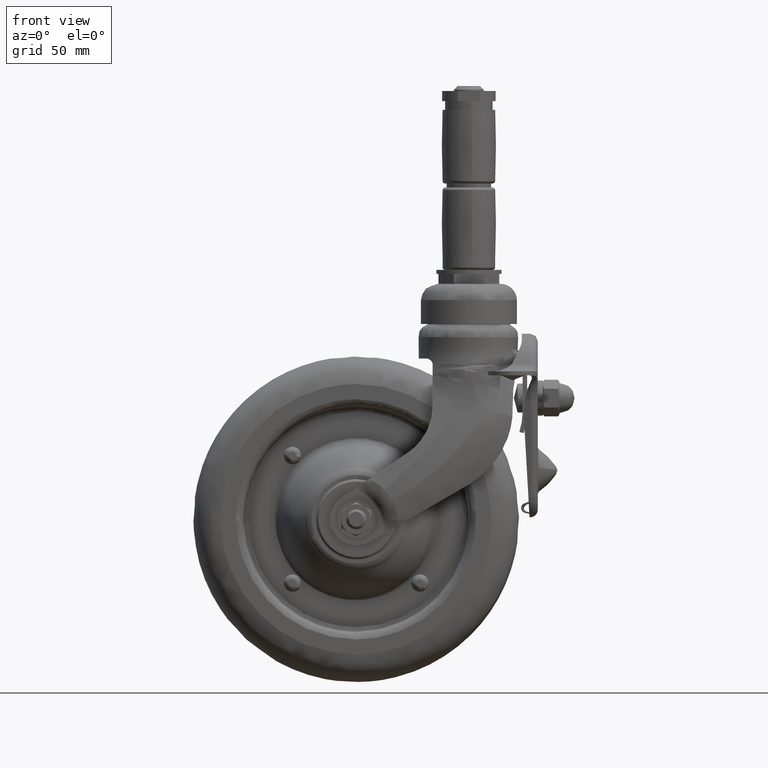
[diagram: clean part render]
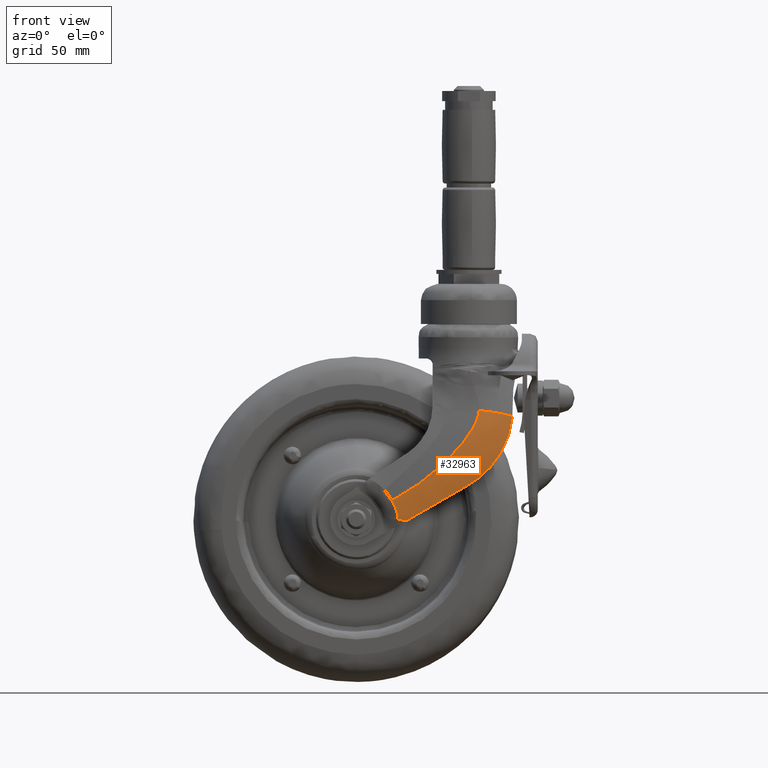
[diagram: same view with one face highlighted and labeled with its STEP entity id]
A machine part, front view. The second image highlights one B-rep face of the part: STEP entity #32963.
In plain terms, the highlighted face is a freeform B-spline surface patch.
Its self-contained STEP definition (entity closure, byte-faithful):
#30776=CARTESIAN_POINT('',(20.415976594756302,-23.865052486163901,-0.337185914948546));
#30777=VERTEX_POINT('',#30776);
#30828=CARTESIAN_POINT('',(45.0,-21.160551298550551,13.856406867544759));
#30829=VERTEX_POINT('',#30828);
#30835=CARTESIAN_POINT('',(20.415976594756302,-23.865052486163901,-0.337185914948546));
#30836=CARTESIAN_POINT('',(21.449715460071388,-23.866348664602832,0.259643507797667));
#30837=CARTESIAN_POINT('',(22.482211063196750,-23.852576439193459,0.855755132770276));
#30838=CARTESIAN_POINT('',(24.545028476371961,-23.798685500758559,2.046723342676876));
#30839=CARTESIAN_POINT('',(25.575345488718430,-23.758508639304551,2.641577157655014));
#30840=CARTESIAN_POINT('',(27.633883661476322,-23.652753079528740,3.830074746910936));
#30841=CARTESIAN_POINT('',(28.662103387305919,-23.587156993999109,4.423717692932510));
#30842=CARTESIAN_POINT('',(30.716391954542519,-23.429895989397650,5.609761771253259));
#30843=CARTESIAN_POINT('',(31.742460494124462,-23.338227412189880,6.202162729293643));
#30844=CARTESIAN_POINT('',(33.792278459912197,-23.126782480372430,7.385625704618679));
#30845=CARTESIAN_POINT('',(34.816028264834230,-23.007010715823281,7.976687940555241));
#30846=CARTESIAN_POINT('',(36.860965695597777,-22.736413440065011,9.157333137620302));
#30847=CARTESIAN_POINT('',(37.882153621946870,-22.585591571023318,9.746916272246921));
#30848=CARTESIAN_POINT('',(39.921572445646902,-22.248108484287719,10.924375299981801));
#30849=CARTESIAN_POINT('',(40.939804667803500,-22.061463323308640,11.512251957966980));
#30850=CARTESIAN_POINT('',(42.972743689713397,-21.645444694412451,12.685969870327691));
#30851=CARTESIAN_POINT('',(43.987453115458912,-21.416103053660269,13.271812640820540));
#30852=CARTESIAN_POINT('',(45.0,-21.160551298550551,13.856406867544759));
#30853=B_SPLINE_CURVE_WITH_KNOTS('',3,(#30835,#30836,#30837,#30838,#30839,#30840,#30841,#30842,#30843,#30844,#30845,#30846,#30847,#30848,#30849,#30850,#30851,#30852),.UNSPECIFIED.,.F.,.U.,(4,2,2,2,2,2,2,2,4),(0.0,0.125000000000000,0.250000000000000,0.375000000000000,0.500000000000000,0.625000000000000,0.750000000000000,0.875000000000000,1.0),.UNSPECIFIED.);
#30854=EDGE_CURVE('',#30777,#30829,#30853,.T.);
#30957=CARTESIAN_POINT('',(62.366952196205098,-16.766161363018700,41.118420051766300));
#30958=VERTEX_POINT('',#30957);
#30959=CARTESIAN_POINT('',(62.366952196205098,-16.766161363018700,41.118420051766300));
#30960=CARTESIAN_POINT('',(62.244645255823087,-17.021816798708020,39.719717770106023));
#30961=CARTESIAN_POINT('',(62.038887086209911,-17.225509760171860,38.334175742820769));
#30962=CARTESIAN_POINT('',(61.462632743878160,-17.570646936777720,35.594105800714331));
#30963=CARTESIAN_POINT('',(61.092153567125180,-17.712142712493002,34.239580322402787));
#30964=CARTESIAN_POINT('',(60.524323237998701,-17.872985926071969,32.569080850117658));
#30965=CARTESIAN_POINT('',(60.405507374761669,-17.904340622516600,32.236115363345561));
#30966=CARTESIAN_POINT('',(60.157275904479782,-17.965947855213201,31.572542430610220));
#30967=CARTESIAN_POINT('',(60.027660522471876,-17.996242128587141,31.241471414229569));
#30968=CARTESIAN_POINT('',(59.624979782341534,-18.085756753492479,30.257291142585888));
#30969=CARTESIAN_POINT('',(59.337760998762583,-18.143729260679908,29.612139452461300));
#30970=CARTESIAN_POINT('',(58.421197052905782,-18.318403385870020,27.709410261967822));
#30971=CARTESIAN_POINT('',(57.737117229612473,-18.436051079628740,26.484476661684472));
#30972=CARTESIAN_POINT('',(56.225960573782963,-18.699639368886888,24.122731968265590));
#30973=CARTESIAN_POINT('',(55.398900742132518,-18.845563771771680,22.985908987897201));
#30974=CARTESIAN_POINT('',(54.386519514185103,-19.036821740594291,21.758674543617161));
#30975=CARTESIAN_POINT('',(54.272809389235931,-19.058460918669549,21.622942202218550));
#30976=CARTESIAN_POINT('',(54.043861668669607,-19.102368167577140,21.353821506481172));
#30977=CARTESIAN_POINT('',(53.697934956014002,-19.169211495386399,20.953389013031991));
#30978=CARTESIAN_POINT('',(53.344577686781683,-19.239089345251319,20.562624638833402));
#30979=CARTESIAN_POINT('',(52.628148095656300,-19.383071786326841,19.793806369053311));
#30980=CARTESIAN_POINT('',(52.137586125143812,-19.484712237918689,19.298199320140260));
#30981=CARTESIAN_POINT('',(50.628194978329802,-19.807408145288779,17.861078559464548));
#30982=CARTESIAN_POINT('',(49.571831095539551,-20.046460344324831,16.969122070734400));
#30983=CARTESIAN_POINT('',(47.360681807768252,-20.570874971327690,15.314918088860820));
#30984=CARTESIAN_POINT('',(46.205912356221283,-20.856196972272251,14.552640691028220));
#30985=CARTESIAN_POINT('',(45.0,-21.160551298550551,13.856406867544759));
#30986=B_SPLINE_CURVE_WITH_KNOTS('',3,(#30959,#30960,#30961,#30962,#30963,#30964,#30965,#30966,#30967,#30968,#30969,#30970,#30971,#30972,#30973,#30974,#30975,#30976,#30977,#30978,#30979,#30980,#30981,#30982,#30983,#30984,#30985),.UNSPECIFIED.,.F.,.U.,(4,2,2,2,2,2,2,2,2,1,2,2,2,4),(0.0,0.124999999999999,0.249999999999998,0.281249999999998,0.312499999999998,0.374999999999999,0.499999999999999,0.625000000000000,0.640625000000000,0.656250000000000,0.687500000000000,0.750000000000000,0.875000000000000,1.0),.UNSPECIFIED.);
#30987=EDGE_CURVE('',#30958,#30829,#30986,.T.);
#32399=CARTESIAN_POINT('',(14.340232834005899,-25.932466987408350,7.506909757720419));
#32400=VERTEX_POINT('',#32399);
#32516=CARTESIAN_POINT('',(16.824663103213851,-24.679304129174049,-0.174273375091436));
#32517=VERTEX_POINT('',#32516);
#32531=CARTESIAN_POINT('',(14.340232834005921,-25.932466987408350,7.506909757720440));
#32532=CARTESIAN_POINT('',(14.674780783568499,-25.963658045048479,6.899382182002607));
#32533=CARTESIAN_POINT('',(14.980524010004270,-25.959381745148260,6.281909699237446));
#32534=CARTESIAN_POINT('',(15.534024405093639,-25.881890017400728,5.026773156759369));
#32535=CARTESIAN_POINT('',(15.781819271270381,-25.808674866862511,4.389125334215402));
#32536=CARTESIAN_POINT('',(16.051224405667860,-25.673942398282659,3.577687815009695));
#32537=CARTESIAN_POINT('',(16.103149369618631,-25.644775362143349,3.414404979523501));
#32538=CARTESIAN_POINT('',(16.202220418715530,-25.582436884776801,3.088100612958135));
#32539=CARTESIAN_POINT('',(16.249398188176791,-25.549261897912618,2.925010325648953));
#32540=CARTESIAN_POINT('',(16.383732945858188,-25.443863311364261,2.435861313877350));
#32541=CARTESIAN_POINT('',(16.463708690874821,-25.365768799985670,2.109927207219696));
#32542=CARTESIAN_POINT('',(16.603440438370669,-25.194609951814151,1.457991198875053));
#32543=CARTESIAN_POINT('',(16.663194323718269,-25.101544917140441,1.131989056794506));
#32544=CARTESIAN_POINT('',(16.760884761371280,-24.901052978743792,0.479431176603903));
#32545=CARTESIAN_POINT('',(16.798826494653120,-24.793624880434479,0.152876805476466));
#32546=CARTESIAN_POINT('',(16.824663103213851,-24.679304129174049,-0.174273375091436));
#32547=B_SPLINE_CURVE_WITH_KNOTS('',3,(#32531,#32532,#32533,#32534,#32535,#32536,#32537,#32538,#32539,#32540,#32541,#32542,#32543,#32544,#32545,#32546),.UNSPECIFIED.,.F.,.U.,(4,2,2,2,2,2,2,4),(0.0,0.250000000000000,0.500000000000000,0.562500000000000,0.624999999999999,0.750000000000000,0.875000000000000,1.0),.UNSPECIFIED.);
#32548=EDGE_CURVE('',#32400,#32517,#32547,.T.);
#32643=CARTESIAN_POINT('',(49.053775367556256,-21.404281912199590,43.729306900880417));
#32644=CARTESIAN_POINT('',(49.045030356946910,-21.422148904308031,43.639481247533119));
#32645=CARTESIAN_POINT('',(49.036285364455765,-21.440015859398997,43.549655780289775));
#32646=CARTESIAN_POINT('',(49.000048615126076,-21.514051414440651,43.177444718562882));
#32647=CARTESIAN_POINT('',(48.960704400789318,-21.569116417163357,42.898061861122947));
#32648=CARTESIAN_POINT('',(48.862685943522550,-21.677324761296294,42.344156956340399));
#32649=CARTESIAN_POINT('',(48.804003090707049,-21.730467806253873,42.069635241637116));
#32650=CARTESIAN_POINT('',(48.603766507783440,-21.887324678240606,41.252129858078696));
#32651=CARTESIAN_POINT('',(48.438296080088371,-21.988479713324050,40.715151785363460));
#32652=CARTESIAN_POINT('',(48.154379220220790,-22.135885972926850,39.918679674746073));
#32653=CARTESIAN_POINT('',(48.053535498905902,-22.184364897322901,39.654319868289441));
#32654=CARTESIAN_POINT('',(47.842760803879003,-22.279261186598720,39.132192440909236));
#32655=CARTESIAN_POINT('',(47.732689251292754,-22.325760910667661,38.873987126769400));
#32656=CARTESIAN_POINT('',(47.390187309363775,-22.462688266435229,38.106875542315642));
#32657=CARTESIAN_POINT('',(47.145553823962409,-22.550556299806189,37.605422384663456));
#32658=CARTESIAN_POINT('',(46.630182313884582,-22.720500154276518,36.618477119530461));
#32659=CARTESIAN_POINT('',(46.359400221069954,-22.802569692533293,36.133012668969236));
#32660=CARTESIAN_POINT('',(45.795924576895786,-22.961621957313380,35.175494184185169));
#32661=CARTESIAN_POINT('',(45.503209953882369,-23.038601720132217,34.703453056391822));
#32662=CARTESIAN_POINT('',(44.898838584019472,-23.187997132483709,33.770971229678146));
#32663=CARTESIAN_POINT('',(44.587170742196953,-23.260411252220095,33.310537089475211));
#32664=CARTESIAN_POINT('',(43.947095339912266,-23.401080879923835,32.399924872843101));
#32665=CARTESIAN_POINT('',(43.618423400883344,-23.469374667944482,31.949458835483870));
#32666=CARTESIAN_POINT('',(42.616650175982386,-23.667232976866142,30.620626252857544));
#32667=CARTESIAN_POINT('',(41.925758699201239,-23.790312352849408,29.761489857713958));
#32668=CARTESIAN_POINT('',(40.507240368124698,-24.021947252918984,28.085929612179150));
#32669=CARTESIAN_POINT('',(39.779545523928149,-24.130483949137901,27.269581124929410));
#32670=CARTESIAN_POINT('',(37.550097426460312,-24.437461857527271,24.874536668900760));
#32671=CARTESIAN_POINT('',(36.002467360129714,-24.617418780379090,23.349192562354574));
#32672=CARTESIAN_POINT('',(32.811022531059848,-24.938921040798064,20.410813597244776));
#32673=CARTESIAN_POINT('',(31.166995819261334,-25.080372877860636,18.998000129446254));
#32674=CARTESIAN_POINT('',(28.636050923581323,-25.268699211491537,16.954901047591743));
#32675=CARTESIAN_POINT('',(27.781506379972207,-25.327479237193650,16.286654371870057));
#32676=CARTESIAN_POINT('',(26.050415831586058,-25.437656081381437,14.976058113174663));
#32677=CARTESIAN_POINT('',(25.173054641730019,-25.489078494176919,14.333304818387239));
#32678=CARTESIAN_POINT('',(22.518091026325877,-25.632565160128241,12.452580052176533));
#32679=CARTESIAN_POINT('',(20.715169142927614,-25.714084799100320,11.259168856882368));
#32680=CARTESIAN_POINT('',(17.955257206335546,-25.818558087468734,9.571341035298316));
#32681=CARTESIAN_POINT('',(17.025983463597555,-25.850407328007893,9.025873634720766));
#32682=CARTESIAN_POINT('',(15.615783682060050,-25.894014817180430,8.237750917054253));
#32683=CARTESIAN_POINT('',(15.142992325260058,-25.907855675974133,7.980076405504784));
#32684=CARTESIAN_POINT('',(14.191206825144807,-25.934172194269504,7.476203664548495));
#32685=CARTESIAN_POINT('',(13.712879135663028,-25.946627232152103,7.230391228795568));
#32686=CARTESIAN_POINT('',(13.231925457815906,-25.958377228115076,6.991919051594411));
#32687=CARTESIAN_POINT('',(49.111639869565153,-21.405127809130189,43.725087200397333));
#32688=CARTESIAN_POINT('',(49.102851384897328,-21.423101510580430,43.634713569592932));
#32689=CARTESIAN_POINT('',(49.094062909342014,-21.441075193394099,43.544340032494979));
#32690=CARTESIAN_POINT('',(49.057645881689737,-21.515553195855723,43.169856929159032));
#32691=CARTESIAN_POINT('',(49.018116723010039,-21.570916121092754,42.888909319594553));
#32692=CARTESIAN_POINT('',(48.919664167907413,-21.679657329734678,42.332147170049133));
#32693=CARTESIAN_POINT('',(48.860732500108256,-21.733035519592306,42.056331976032766));
#32694=CARTESIAN_POINT('',(48.659691147904752,-21.890523650534764,41.235271470916260));
#32695=CARTESIAN_POINT('',(48.493608240396917,-21.992003162509310,40.696345016168316));
#32696=CARTESIAN_POINT('',(48.208738664893517,-22.139807815229485,39.897344531842798));
#32697=CARTESIAN_POINT('',(48.107570338028644,-22.188404664127805,39.632207706622353));
#32698=CARTESIAN_POINT('',(47.896144971300984,-22.283511408329073,39.108643872070402));
#32699=CARTESIAN_POINT('',(47.785746705477514,-22.330103930226983,38.849777486877905));
#32700=CARTESIAN_POINT('',(47.442266036963076,-22.467280240340191,38.080819492904553));
#32701=CARTESIAN_POINT('',(47.196981499305075,-22.555275277509416,37.578316636312451));
#32702=CARTESIAN_POINT('',(46.680330678495430,-22.725422315222023,36.589514900630512));
#32703=CARTESIAN_POINT('',(46.408919816410005,-22.807567794745513,36.103244365217734));
#32704=CARTESIAN_POINT('',(45.844212140308208,-22.966736368320724,35.144289146231408));
#32705=CARTESIAN_POINT('',(45.550893830692601,-23.043756322218872,34.671617969981440));
#32706=CARTESIAN_POINT('',(44.945339576151177,-23.193206157840020,33.738009272259532));
#32707=CARTESIAN_POINT('',(44.633092279538950,-23.265634382781094,33.277078763994183));
#32708=CARTESIAN_POINT('',(43.991880187704574,-23.406312695538229,32.365579049673158));
#32709=CARTESIAN_POINT('',(43.662650515669291,-23.474600930511368,31.914722174536539));
#32710=CARTESIAN_POINT('',(42.659240746538487,-23.672420335085725,30.584850491263154));
#32711=CARTESIAN_POINT('',(41.967309005382965,-23.795444533167050,29.725198326567661));
#32712=CARTESIAN_POINT('',(40.546779426728520,-24.026935461076743,28.048846447003779));
#32713=CARTESIAN_POINT('',(39.818113361009445,-24.135382735943825,27.232225238091605));
#32714=CARTESIAN_POINT('',(37.585806021832191,-24.442059303536926,24.836642656314936));
#32715=CARTESIAN_POINT('',(36.036367853144199,-24.621773908996925,23.311317028986263));
#32716=CARTESIAN_POINT('',(32.841327546917611,-24.942760282875874,20.373547567592446));
#32717=CARTESIAN_POINT('',(31.195512002888968,-25.083936318180310,18.961340532681536));
#32718=CARTESIAN_POINT('',(28.661781967739678,-25.271840967409055,16.919633106845538));
#32719=CARTESIAN_POINT('',(27.806280704903820,-25.330477378780564,16.251941749144251));
#32720=CARTESIAN_POINT('',(26.073203160259038,-25.440363905467432,14.942661177953070));
#32721=CARTESIAN_POINT('',(25.194843130070442,-25.491642370786746,14.300636968791446));
#32722=CARTESIAN_POINT('',(22.536849164227565,-25.634702682358110,12.422329342177404));
#32723=CARTESIAN_POINT('',(20.731900543448408,-25.715951278199373,11.230803918359834));
#32724=CARTESIAN_POINT('',(17.968877081180164,-25.820041182744486,9.546340017063272));
#32725=CARTESIAN_POINT('',(17.038547174752214,-25.851765698399561,9.002094559458202));
#32726=CARTESIAN_POINT('',(15.626726626144066,-25.895191377173312,8.215989563441598));
#32727=CARTESIAN_POINT('',(15.153386940742088,-25.908972315190230,7.959021417490632));
#32728=CARTESIAN_POINT('',(14.200483132098839,-25.935170212088877,7.456642234955769));
#32729=CARTESIAN_POINT('',(13.721579430674710,-25.947566134504218,7.211627268679057));
#32730=CARTESIAN_POINT('',(13.240062411477124,-25.959259482086836,6.973961140315355));
#32731=CARTESIAN_POINT('',(63.340077851219711,-21.613127387422136,42.687495161409871));
#32732=CARTESIAN_POINT('',(63.322416143993230,-21.657370029498214,42.462228271005728));
#32733=CARTESIAN_POINT('',(63.304749959240532,-21.701623887794135,42.236904271829481));
#32734=CARTESIAN_POINT('',(63.231498194211383,-21.885119830744046,41.302611957210829));
#32735=CARTESIAN_POINT('',(63.153759196785998,-22.014026072417568,40.635437420758116));
#32736=CARTESIAN_POINT('',(62.962369586939936,-22.254536097955310,39.372246385936002));
#32737=CARTESIAN_POINT('',(62.848780538294818,-22.366169160598773,38.776080686577323));
#32738=CARTESIAN_POINT('',(62.465848103979987,-22.680256288879832,37.073429057881405));
#32739=CARTESIAN_POINT('',(62.155155420352585,-22.862259666905782,36.051262212892631));
#32740=CARTESIAN_POINT('',(61.637510852998439,-23.108646388857139,34.626783447685732));
#32741=CARTESIAN_POINT('',(61.455854780009290,-23.186352604132011,34.169816620579816));
#32742=CARTESIAN_POINT('',(61.081099762979541,-23.333241769889341,33.292559618214817));
#32743=CARTESIAN_POINT('',(60.887732045503121,-23.402567346948853,32.871459231322653));
#32744=CARTESIAN_POINT('',(60.293361734401401,-23.600408847990202,31.651154255009576));
#32745=CARTESIAN_POINT('',(59.878000634649638,-23.718879235011666,30.894590194733635));
#32746=CARTESIAN_POINT('',(59.023353314524115,-23.936914343723227,29.461040697218742));
#32747=CARTESIAN_POINT('',(58.584037430860974,-24.036424409286777,28.784270999863679));
#32748=CARTESIAN_POINT('',(57.687882490106730,-24.221166986137842,27.490513377493134));
#32749=CARTESIAN_POINT('',(57.230985608683852,-24.306368120559220,26.873662855860442));
#32750=CARTESIAN_POINT('',(56.303310340588546,-24.465522188018504,25.686977852572873));
#32751=CARTESIAN_POINT('',(55.832503975397728,-24.539459103811023,25.117213406593041));
#32752=CARTESIAN_POINT('',(54.879247348554486,-24.678187008386306,24.015978554733461));
#32753=CARTESIAN_POINT('',(54.396428287849375,-24.742997958977636,23.484246866340271));
#32754=CARTESIAN_POINT('',(52.942394888903415,-24.924866673963852,21.947077711225770));
#32755=CARTESIAN_POINT('',(51.962469030516566,-25.030019395940567,20.995066236125830));
#32756=CARTESIAN_POINT('',(49.985312593746407,-25.217691382021076,19.196569817139757));
#32757=CARTESIAN_POINT('',(48.987999112403962,-25.300117881347404,18.350492676263336));
#32758=CARTESIAN_POINT('',(45.971132184409612,-25.521661676697835,15.938122514824867));
#32759=CARTESIAN_POINT('',(43.927086834644342,-25.635478814028701,14.495362937815726));
#32760=CARTESIAN_POINT('',(39.764089052817290,-25.819782007355105,11.860638788201335));
#32761=CARTESIAN_POINT('',(37.645461242835623,-25.889935097036581,10.669468752898764));
#32762=CARTESIAN_POINT('',(34.389962711585952,-25.971250817926268,9.068372279088436));
#32763=CARTESIAN_POINT('',(33.291456858797481,-25.994282942967928,8.566370055866422));
#32764=CARTESIAN_POINT('',(31.061808948306652,-26.033161205328732,7.631398557380843));
#32765=CARTESIAN_POINT('',(29.938172501161084,-26.049795421022719,7.188882905952130));
#32766=CARTESIAN_POINT('',(26.553966195630711,-26.092460110072430,5.944040133170029));
#32767=CARTESIAN_POINT('',(24.277251292797878,-26.111454515613474,5.220329426333112));
#32768=CARTESIAN_POINT('',(20.812211542511971,-26.129657530555289,4.327036790932691));
#32769=CARTESIAN_POINT('',(19.648861310226952,-26.133989110813292,4.061607188948318));
#32770=CARTESIAN_POINT('',(17.884696274183071,-26.137963041967911,3.725746756715612));
#32771=CARTESIAN_POINT('',(17.293409183868924,-26.138863720417220,3.624263411578859));
#32772=CARTESIAN_POINT('',(16.101928665379731,-26.139742628049408,3.446965419815964));
#32773=CARTESIAN_POINT('',(15.501116770797596,-26.139606955197486,3.373692160606794));
#32774=CARTESIAN_POINT('',(14.901049070053949,-26.139352934452457,3.308234101391550));
#32775=CARTESIAN_POINT('',(68.028229071128450,-8.476903900801364,39.704832359737985));
#32776=CARTESIAN_POINT('',(68.002884705535266,-8.522199411671533,39.439005145300001));
#32777=CARTESIAN_POINT('',(67.977540366589821,-8.567494874916905,39.173178210359254));
#32778=CARTESIAN_POINT('',(67.872520394482606,-8.755186820516292,38.071664481677843));
#32779=CARTESIAN_POINT('',(67.762885384228042,-8.877591400744345,37.291119206591091));
#32780=CARTESIAN_POINT('',(67.504527647531177,-9.102233616105272,35.825630839123853));
#32781=CARTESIAN_POINT('',(67.355762444444920,-9.204337499398678,35.140415843544204));
#32782=CARTESIAN_POINT('',(66.870650022711544,-9.496034801839434,33.198962539412641));
#32783=CARTESIAN_POINT('',(66.496780405162539,-9.671968979859587,32.054575037780054));
#32784=CARTESIAN_POINT('',(65.898567686100321,-9.931326219293840,30.476169337296579));
#32785=CARTESIAN_POINT('',(65.692185399431352,-10.016794404519191,29.972896757696688));
#32786=CARTESIAN_POINT('',(65.272373957196407,-10.185580239345830,29.011020213939727));
#32787=CARTESIAN_POINT('',(65.058616214055107,-10.269025546690647,28.551518601127544));
#32788=CARTESIAN_POINT('',(64.408612388552356,-10.517745034874141,27.224536665893307));
#32789=CARTESIAN_POINT('',(63.963662233793414,-10.681866604771729,26.408006840249485));
#32790=CARTESIAN_POINT('',(63.059315873562397,-11.006698687745569,24.867052835740818));
#32791=CARTESIAN_POINT('',(62.599841101867632,-11.167195394863006,24.142994367414602));
#32792=CARTESIAN_POINT('',(61.669743063432904,-11.485754667391223,22.762466698304348));
#32793=CARTESIAN_POINT('',(61.199072426112018,-11.643798996268588,22.106186688144774));
#32794=CARTESIAN_POINT('',(60.248142521138007,-11.958295975190783,20.845797920246685));
#32795=CARTESIAN_POINT('',(59.767863815868985,-12.114743081225633,20.241783117480345));
#32796=CARTESIAN_POINT('',(58.798483350462121,-12.426721366677933,19.075668669738924));
#32797=CARTESIAN_POINT('',(58.309017636381888,-12.582357320498637,18.513304180232726));
#32798=CARTESIAN_POINT('',(56.837756788944503,-13.045722094936805,16.888864774276993));
#32799=CARTESIAN_POINT('',(55.849812481958473,-13.351018143696109,15.884497080345053));
#32800=CARTESIAN_POINT('',(53.857639868915889,-13.959828803104864,13.989155277582293));
#32801=CARTESIAN_POINT('',(52.853394280914976,-14.263319732563280,13.098665686594149));
#32802=CARTESIAN_POINT('',(49.811768362621748,-15.177944173419798,10.563979000800781));
#32803=CARTESIAN_POINT('',(47.746043494865503,-15.793124238590726,9.053631660555126));
#32804=CARTESIAN_POINT('',(43.505080630665098,-17.068951197691568,6.324759412365582));
#32805=CARTESIAN_POINT('',(41.330873698680435,-17.729176993136225,5.106455496070753));
#32806=CARTESIAN_POINT('',(37.941220186297635,-18.784534195889321,3.525636148008035));
#32807=CARTESIAN_POINT('',(36.789368549225969,-19.147715839467622,3.040833786075445));
#32808=CARTESIAN_POINT('',(34.428252858487504,-19.901517951414423,2.171773339759814));
#32809=CARTESIAN_POINT('',(33.227758603661982,-20.277534694857327,1.776638843052327));
#32810=CARTESIAN_POINT('',(29.578407568790805,-21.392953567820189,0.725592940185403));
#32811=CARTESIAN_POINT('',(27.078847648004981,-22.121563253048812,0.198665166652478));
#32812=CARTESIAN_POINT('',(23.202334852069718,-23.161450293924045,-0.248455991800567));
#32813=CARTESIAN_POINT('',(21.889042211590326,-23.499079451419178,-0.339884060820377));
#32814=CARTESIAN_POINT('',(19.877684229836703,-23.986917382262646,-0.364626822936609));
#32815=CARTESIAN_POINT('',(19.200262065412357,-24.146424621184529,-0.353991850197859));
#32816=CARTESIAN_POINT('',(17.827613293574732,-24.458295106300870,-0.286511917726759));
#32817=CARTESIAN_POINT('',(17.130876258614755,-24.612081396240299,-0.225432239568673));
#32818=CARTESIAN_POINT('',(16.433833899111434,-24.754749926208987,-0.150745982526446));
#32819=CARTESIAN_POINT('',(68.047560795783482,-8.422736310308324,39.692533264995582));
#32820=CARTESIAN_POINT('',(68.022182284443929,-8.468043083487078,39.426540391812281));
#32821=CARTESIAN_POINT('',(67.996803826421427,-8.513349761482091,39.160548077446052));
#32822=CARTESIAN_POINT('',(67.891642758074013,-8.701087671208624,38.058352036766799));
#32823=CARTESIAN_POINT('',(67.781866515374816,-8.823493426602648,37.277346760353318));
#32824=CARTESIAN_POINT('',(67.523214417944999,-9.048124081911816,35.811039803412328));
#32825=CARTESIAN_POINT('',(67.374295661814699,-9.150214564751718,35.125465580103452));
#32826=CARTESIAN_POINT('',(66.888741355967014,-9.441884774429058,33.183049391383221));
#32827=CARTESIAN_POINT('',(66.514603651825581,-9.617820174908793,32.038167830431178));
#32828=CARTESIAN_POINT('',(65.916056880198752,-9.877240878691746,30.459133447223348));
#32829=CARTESIAN_POINT('',(65.709573495215295,-9.962739714274305,29.955670424076956));
#32830=CARTESIAN_POINT('',(65.289580502362838,-10.131604808134377,28.993443100697366));
#32831=CARTESIAN_POINT('',(65.075742027652112,-10.215098710161408,28.533780755866637));
#32832=CARTESIAN_POINT('',(64.425521871192146,-10.463988630897184,27.206347782744476));
#32833=CARTESIAN_POINT('',(63.980462609163212,-10.628257978463740,26.389557861386599));
#32834=CARTESIAN_POINT('',(63.075942200830518,-10.953432089257719,24.848127698420118));
#32835=CARTESIAN_POINT('',(62.616402248184855,-11.114122784208272,24.123853774968968));
#32836=CARTESIAN_POINT('',(61.686203795591183,-11.433107366652465,22.742921285152740));
#32837=CARTESIAN_POINT('',(61.215498003777668,-11.591383305239667,22.086452102268719));
#32838=CARTESIAN_POINT('',(60.264518389201491,-11.906375721824569,20.825701115055772));
#32839=CARTESIAN_POINT('',(59.784225200701343,-12.063086925621457,20.221513359588595));
#32840=CARTESIAN_POINT('',(58.814829829044974,-12.375622550320989,19.055063462579025));
#32841=CARTESIAN_POINT('',(58.325363765363065,-12.531552244201826,18.492536432057054));
#32842=CARTESIAN_POINT('',(56.854115528135729,-12.995835118329889,16.867622592335394));
#32843=CARTESIAN_POINT('',(55.866197709575118,-13.301790928184182,15.862955932794282));
#32844=CARTESIAN_POINT('',(53.874087727079392,-13.912010601345555,13.967036585214951));
#32845=CARTESIAN_POINT('',(52.869878597289222,-14.216252339835878,13.076268810242260));
#32846=CARTESIAN_POINT('',(49.828351713730875,-15.133281390700791,10.540774171009987));
#32847=CARTESIAN_POINT('',(47.762679572783753,-15.750249131019709,9.029926477806743));
#32848=CARTESIAN_POINT('',(43.521685659790549,-17.030109142733060,6.300187467639773));
#32849=CARTESIAN_POINT('',(41.347394819205988,-17.692593606655176,5.081517388436307));
#32850=CARTESIAN_POINT('',(37.957395101488167,-18.751800852084298,3.500390643427707));
#32851=CARTESIAN_POINT('',(36.805387702013505,-19.116361072907537,3.015528856285163));
#32852=CARTESIAN_POINT('',(34.443844997136836,-19.873118419352053,2.146486349797159));
#32853=CARTESIAN_POINT('',(33.243080251005566,-20.250649688517424,1.751430658105895));
#32854=CARTESIAN_POINT('',(29.592727525967916,-21.370702605035486,0.700884926005396));
#32855=CARTESIAN_POINT('',(27.092253689643517,-22.102471049313024,0.174635780679444));
#32856=CARTESIAN_POINT('',(23.213943676611976,-23.147033716805502,-0.270679151876313));
#32857=CARTESIAN_POINT('',(21.899975009222015,-23.486220251491883,-0.361364742618027));
#32858=CARTESIAN_POINT('',(19.887477871484137,-23.976347037219334,-0.384727121550862));
#32859=CARTESIAN_POINT('',(19.209653477884281,-24.136611689318006,-0.373585095404952));
#32860=CARTESIAN_POINT('',(17.836149727778437,-24.449977499536644,-0.304980288553185));
#32861=CARTESIAN_POINT('',(17.138955570336392,-24.604508895361594,-0.243274410865330));
#32862=CARTESIAN_POINT('',(16.441447690680807,-24.747872197181856,-0.167927750575265));
#32870=(BOUNDED_SURFACE()B_SPLINE_SURFACE(3,2,((#32643,#32687,#32731,#32775,#32819),(#32644,#32688,#32732,#32776,#32820),(#32645,#32689,#32733,#32777,#32821),(#32646,#32690,#32734,#32778,#32822),(#32647,#32691,#32735,#32779,#32823),(#32648,#32692,#32736,#32780,#32824),(#32649,#32693,#32737,#32781,#32825),(#32650,#32694,#32738,#32782,#32826),(#32651,#32695,#32739,#32783,#32827),(#32652,#32696,#32740,#32784,#32828),(#32653,#32697,#32741,#32785,#32829),(#32654,#32698,#32742,#32786,#32830),(#32655,#32699,#32743,#32787,#32831),(#32656,#32700,#32744,#32788,#32832),(#32657,#32701,#32745,#32789,#32833),(#32658,#32702,#32746,#32790,#32834),(#32659,#32703,#32747,#32791,#32835),(#32660,#32704,#32748,#32792,#32836),(#32661,#32705,#32749,#32793,#32837),(#32662,#32706,#32750,#32794,#32838),(#32663,#32707,#32751,#32795,#32839),(#32664,#32708,#32752,#32796,#32840),(#32665,#32709,#32753,#32797,#32841),(#32666,#32710,#32754,#32798,#32842),(#32667,#32711,#32755,#32799,#32843),(#32668,#32712,#32756,#32800,#32844),(#32669,#32713,#32757,#32801,#32845),(#32670,#32714,#32758,#32802,#32846),(#32671,#32715,#32759,#32803,#32847),(#32672,#32716,#32760,#32804,#32848),(#32673,#32717,#32761,#32805,#32849),(#32674,#32718,#32762,#32806,#32850),(#32675,#32719,#32763,#32807,#32851),(#32676,#32720,#32764,#32808,#32852),(#32677,#32721,#32765,#32809,#32853),(#32678,#32722,#32766,#32810,#32854),(#32679,#32723,#32767,#32811,#32855),(#32680,#32724,#32768,#32812,#32856),(#32681,#32725,#32769,#32813,#32857),(#32682,#32726,#32770,#32814,#32858),(#32683,#32727,#32771,#32815,#32859),(#32684,#32728,#32772,#32816,#32860),(#32685,#32729,#32773,#32817,#32861),(#32686,#32730,#32774,#32818,#32862)),.UNSPECIFIED.,.F.,.F.,.U.)B_SPLINE_SURFACE_WITH_KNOTS((4,2,2,2,2,2,2,2,2,2,2,2,2,2,2,2,2,2,2,2,2,4),(3,1,1,3),(0.0,0.813045028782392,3.369044161012216,5.925043293242084,11.037041557701730,13.593040689931550,16.149039822161381,21.261038086621031,26.373036351080678,31.485034615540322,36.597032879999972,41.709031144459622,51.933027673378923,62.157024202298210,82.605017260136790,103.053010317975410,113.277006846894690,123.501003375813990,143.948996433652610,154.172992962571900,159.284991227031610,164.396989491491210),(0.0,0.129574323088701,25.928946020063620,26.060339770190058),.UNSPECIFIED.)GEOMETRIC_REPRESENTATION_ITEM()RATIONAL_B_SPLINE_SURFACE(((1.001855110125243,1.000927555062622,0.815315741116395,1.000940579392749,1.001881158785497),(1.001856147966708,1.000928073983354,0.815212419497260,1.000941105599944,1.001882211199887),(1.001857185808173,1.000928592904087,0.815109097878126,1.000941631807138,1.001883263614277),(1.001861486349477,1.000930743174738,0.814680960339209,1.000943812270968,1.001887624541936),(1.001865679489451,1.000932839744726,0.814263515068398,1.000945938280091,1.001891876560182),(1.001873735003701,1.000936867501850,0.813461553686758,1.000950022593253,1.001900045186506),(1.001877596791212,1.000938798395606,0.813077095990840,1.000951980599790,1.001903961199580),(1.001887304996437,1.000943652498219,0.812110602054569,1.000956902861628,1.001913805723257),(1.001891210304813,1.000945605152407,0.811721811667792,1.000958882934149,1.001917765868297),(1.001892737774087,1.000946368887044,0.811569745476699,1.000959657392819,1.001919314785639),(1.001892557069977,1.000946278534988,0.811587735354631,1.000959565772079,1.001919131544159),(1.001890966451239,1.000945483225620,0.811746088348697,1.000958759295318,1.001917518590636),(1.001889560839179,1.000944780419589,0.811886023125718,1.000958046620787,1.001916093241574),(1.001883767677902,1.000941883838951,0.812462757456702,1.000955109367606,1.001910218735213),(1.001877753692630,1.000938876846315,0.813061475774121,1.000952060152070,1.001904120304141),(1.001862957510968,1.000931478755484,0.814534499832089,1.000944558180422,1.001889116360845),(1.001854194917351,1.000927097458676,0.815406854031417,1.000940115363325,1.001880230726649),(1.001834622313974,1.000917311156987,0.817355391587196,1.000930191646588,1.001860383293175),(1.001823808717238,1.000911904358619,0.818431932042590,1.000924708928277,1.001849417856555),(1.001800566619277,1.000900283309639,0.820745783699376,1.000912924701514,1.001825849403028),(1.001788135798331,1.000894067899166,0.821983325839075,1.000906622016915,1.001813244033829),(1.001761940687717,1.000880970343859,0.824591162713167,1.000893340551357,1.001786681102714),(1.001748163090183,1.000874081545092,0.825962782303349,1.000886355023034,1.001772710046068),(1.001705403175086,1.000852701587543,0.830219717308046,1.000864674857297,1.001729349714593),(1.001674928597689,1.000837464298844,0.833253593661164,1.000849223613129,1.001698447226258),(1.001610901833549,1.000805450916775,0.839627735725754,1.000816760712887,1.001633521425774),(1.001577336515683,1.000788668257842,0.842969308697602,1.000799742399060,1.001599484798119),(1.001472462089702,1.000736231044851,0.853410012661584,1.000746568885228,1.001493137770455),(1.001397048678230,1.000698524339115,0.860917744853831,1.000708332718112,1.001416665436224),(1.001234747932265,1.000617373966132,0.877075488039534,1.000626042866418,1.001252085732835),(1.001147858635505,1.000573929317753,0.885725694385053,1.000581988186930,1.001163976373859),(1.001006536796907,1.000503268398453,0.899794896353426,1.000510335077326,1.001020670154652),(1.000957512708667,1.000478756354334,0.904675456963161,1.000485478845602,1.000970957691204),(1.000855279286040,1.000427639643020,0.914853237588747,1.000433644375365,1.000867288750730),(1.000804197817738,1.000402098908869,0.919938619306877,1.000407745009186,1.000815490018371),(1.000652631113304,1.000326315556652,0.935027742102858,1.000330897539659,1.000661795079319),(1.000553608284966,1.000276804142483,0.944885894142093,1.000280690907461,1.000561381814921),(1.000412465960965,1.000206232980483,0.958937224653670,1.000209128815489,1.000418257630978),(1.000366665693313,1.000183332846657,0.963496839941648,1.000185907127812,1.000371814255624),(1.000300429461008,1.000150214730504,0.970090944144983,1.000152323981285,1.000304647962570),(1.000278761323213,1.000139380661606,0.972248101240797,1.000141337785041,1.000282675570082),(1.000236333968028,1.000118166984014,0.976471928463767,1.000119826234092,1.000239652468184),(1.000215385581324,1.000107692790662,0.978557431216722,1.000109204966612,1.000218409933224),(1.000195893734091,1.000097946867046,0.980497929148138,1.000099322194918,1.000198644389837)))REPRESENTATION_ITEM('')SURFACE());
#32871=ORIENTED_EDGE('',*,*,#30987,.F.);
#32872=CARTESIAN_POINT('',(49.143115778760396,-21.460217302238799,43.448091829986900));
#32873=VERTEX_POINT('',#32872);
#32874=CARTESIAN_POINT('',(49.143115778760396,-21.460217302238799,43.448091829986900));
#32875=CARTESIAN_POINT('',(56.712198262451942,-21.613093153967789,42.679318348191238));
#32876=CARTESIAN_POINT('',(62.366952196205098,-16.766161363018700,41.118420051766300));
#32884=(BOUNDED_CURVE()B_SPLINE_CURVE(2,(#32874,#32875,#32876),.UNSPECIFIED.,.F.,.U.)CURVE()GEOMETRIC_REPRESENTATION_ITEM()QUASI_UNIFORM_CURVE()RATIONAL_B_SPLINE_CURVE((1.0,0.934635163372556,1.0))REPRESENTATION_ITEM(''));
#32885=EDGE_CURVE('',#32873,#30958,#32884,.T.);
#32886=ORIENTED_EDGE('',*,*,#32885,.F.);
#32887=CARTESIAN_POINT('',(14.340232834005899,-25.932466987408350,7.506909757720419));
#32888=CARTESIAN_POINT('',(14.818987725253971,-25.919752145087472,7.754564627904631));
#32889=CARTESIAN_POINT('',(15.294643693106060,-25.906351158057920,8.008367046169200));
#32890=CARTESIAN_POINT('',(16.239089951751382,-25.878207594249488,8.525765604186315));
#32891=CARTESIAN_POINT('',(16.708115273979590,-25.863458094743802,8.789502235167641));
#32892=CARTESIAN_POINT('',(18.106534539659830,-25.817122360937180,9.594331961969500));
#32893=CARTESIAN_POINT('',(19.027320459139681,-25.783451813241172,10.148967725623519));
#32894=CARTESIAN_POINT('',(20.848699050598530,-25.710137852000681,11.289937085986850));
#32895=CARTESIAN_POINT('',(21.749258698074080,-25.670493218486111,11.876323085560090));
#32896=CARTESIAN_POINT('',(23.531503701365668,-25.584722358245251,13.078663268222400));
#32897=CARTESIAN_POINT('',(24.413178797898940,-25.538596358399101,13.694633770550441));
#32898=CARTESIAN_POINT('',(25.721946834854350,-25.464105382093010,14.640083258726840));
#32899=CARTESIAN_POINT('',(26.155828303004899,-25.438393735665329,14.958774521243770));
#32900=CARTESIAN_POINT('',(27.017092318728810,-25.385245140349930,15.601847221881700));
#32901=CARTESIAN_POINT('',(27.444711158434050,-25.357794043584288,15.926409804682740));
#32902=CARTESIAN_POINT('',(28.718672460988081,-25.272715789272979,16.909015536130589));
#32903=CARTESIAN_POINT('',(29.556167483831480,-25.212368796761179,17.575927668924411));
#32904=CARTESIAN_POINT('',(31.207568585873709,-25.083841784716910,18.933331039627479));
#32905=CARTESIAN_POINT('',(32.021467575292121,-25.015662478476500,19.623829719314401));
#32906=CARTESIAN_POINT('',(33.624735334210477,-24.870764488239420,21.029301501322461));
#32907=CARTESIAN_POINT('',(34.414104737415443,-24.794047291442819,21.744274117941359));
#32908=CARTESIAN_POINT('',(35.966513765690827,-24.631204777353080,23.200461203070589));
#32909=CARTESIAN_POINT('',(36.729560199287683,-24.545081991693220,23.941668897225728));
#32910=CARTESIAN_POINT('',(38.226551484398691,-24.362338347243352,25.453077167645361));
#32911=CARTESIAN_POINT('',(38.960511459899003,-24.265721846526329,26.223262549392580));
#32912=CARTESIAN_POINT('',(40.395268872447332,-24.060580042490141,27.796678256338922));
#32913=CARTESIAN_POINT('',(41.096097008622102,-23.952062791396841,28.599877647378118));
#32914=CARTESIAN_POINT('',(42.458589620083842,-23.721210944397050,30.245329736714250));
#32915=CARTESIAN_POINT('',(43.120320810210103,-23.598893005764669,31.087515112007321));
#32916=CARTESIAN_POINT('',(43.917195946861973,-23.435639615363812,32.170488549988683));
#32917=CARTESIAN_POINT('',(44.075093200623378,-23.402456267382750,32.388681443801403));
#32918=CARTESIAN_POINT('',(44.386618732310559,-23.335216803808400,32.826859688150890));
#32919=CARTESIAN_POINT('',(44.540370839771640,-23.301136031833341,33.047010186752587));
#32920=CARTESIAN_POINT('',(44.995269604065967,-23.197455487343220,33.710820952668278));
#32921=CARTESIAN_POINT('',(45.290077495324510,-23.126420067835500,34.157830280678759));
#32922=CARTESIAN_POINT('',(45.860656295885327,-22.980172022277770,35.061929559536068));
#32923=CARTESIAN_POINT('',(46.136437600826909,-22.904960750681699,35.519013850411689));
#32924=CARTESIAN_POINT('',(46.666134544839338,-22.749917456102921,36.444790590170342));
#32925=CARTESIAN_POINT('',(46.920069407365652,-22.670087901063141,36.913472566577227));
#32926=CARTESIAN_POINT('',(47.402102425243257,-22.505211807690909,37.864593531679162));
#32927=CARTESIAN_POINT('',(47.630239467615290,-22.420170201416258,38.347011325556871));
#32928=CARTESIAN_POINT('',(47.948625145330453,-22.288055715361001,39.083364304693298));
#32929=CARTESIAN_POINT('',(48.050765190451912,-22.243256458568460,39.330946436171203));
#32930=CARTESIAN_POINT('',(48.197191237948481,-22.174804299450649,39.705951374156541));
#32931=CARTESIAN_POINT('',(48.244883651725530,-22.151768049832089,39.831611241308948));
#32932=CARTESIAN_POINT('',(48.337522855659167,-22.105419509006239,40.083342189955822));
#32933=CARTESIAN_POINT('',(48.382510062744679,-22.082089043664951,40.209513329967130));
#32934=CARTESIAN_POINT('',(48.600390470686001,-21.964630354032519,40.841991632001488));
#32935=CARTESIAN_POINT('',(48.752407563729662,-21.868099816892371,41.353096586444259));
#32936=CARTESIAN_POINT('',(48.936390888543677,-21.718795032326771,42.129982729781702));
#32937=CARTESIAN_POINT('',(48.990322435637673,-21.668272073546071,42.390663012645973));
#32938=CARTESIAN_POINT('',(49.080704445270037,-21.565552706492671,42.916105716768527));
#32939=CARTESIAN_POINT('',(49.117158317702717,-21.513356581330981,43.180867333483128));
#32940=CARTESIAN_POINT('',(49.143115778760396,-21.460217302238799,43.448091829986900));
#32941=B_SPLINE_CURVE_WITH_KNOTS('',3,(#32887,#32888,#32889,#32890,#32891,#32892,#32893,#32894,#32895,#32896,#32897,#32898,#32899,#32900,#32901,#32902,#32903,#32904,#32905,#32906,#32907,#32908,#32909,#32910,#32911,#32912,#32913,#32914,#32915,#32916,#32917,#32918,#32919,#32920,#32921,#32922,#32923,#32924,#32925,#32926,#32927,#32928,#32929,#32930,#32931,#32932,#32933,#32934,#32935,#32936,#32937,#32938,#32939,#32940),.UNSPECIFIED.,.F.,.U.,(4,2,2,2,2,2,2,2,2,2,2,2,2,2,2,2,2,2,2,2,2,2,2,2,2,2,4),(0.0,0.031250000000000,0.062500000000000,0.125000000000000,0.187500000000000,0.250000000000000,0.281250000000000,0.312500000000000,0.375000000000000,0.437500000000000,0.499999999999999,0.562499999999999,0.624999999999999,0.687499999999999,0.749999999999999,0.765624999999999,0.781249999999999,0.812499999999999,0.843749999999999,0.875000000000000,0.906250000000000,0.921875000000000,0.929687500000000,0.937500000000000,0.968750000000000,0.984375000000000,1.0),.UNSPECIFIED.);
#32942=EDGE_CURVE('',#32400,#32873,#32941,.T.);
#32943=ORIENTED_EDGE('',*,*,#32942,.F.);
#32944=ORIENTED_EDGE('',*,*,#32548,.T.);
#32945=CARTESIAN_POINT('',(20.415976594756302,-23.865052486163901,-0.337185914948546));
#32946=CARTESIAN_POINT('',(19.822030359284060,-24.007995746918439,-0.342843389007107));
#32947=CARTESIAN_POINT('',(19.224995664171821,-24.147895049516301,-0.333505344727547));
#32948=CARTESIAN_POINT('',(18.474251803371949,-24.318463319216221,-0.300077449684799));
#32949=CARTESIAN_POINT('',(18.323838553112729,-24.352369966930141,-0.292294599656174));
#32950=CARTESIAN_POINT('',(18.023453247138431,-24.419536275951881,-0.274505099292584));
#32951=CARTESIAN_POINT('',(17.873373872572781,-24.452820512912108,-0.264494472429936));
#32952=CARTESIAN_POINT('',(17.573450463493490,-24.518776992366160,-0.242165809947564));
#32953=CARTESIAN_POINT('',(17.423629825985920,-24.551484304094661,-0.229733945591368));
#32954=CARTESIAN_POINT('',(17.124128997962220,-24.616114507728909,-0.202988092185489));
#32955=CARTESIAN_POINT('',(16.974388806152270,-24.647948254823639,-0.188966966935553));
#32956=CARTESIAN_POINT('',(16.824663103213851,-24.679304129174049,-0.174273375091436));
#32957=B_SPLINE_CURVE_WITH_KNOTS('',3,(#32945,#32946,#32947,#32948,#32949,#32950,#32951,#32952,#32953,#32954,#32955,#32956),.UNSPECIFIED.,.F.,.U.,(4,2,2,2,2,4),(0.0,0.500000000000000,0.625000000000000,0.750000000000000,0.875000000000000,1.0),.UNSPECIFIED.);
#32958=EDGE_CURVE('',#30777,#32517,#32957,.T.);
#32959=ORIENTED_EDGE('',*,*,#32958,.F.);
#32960=ORIENTED_EDGE('',*,*,#30854,.T.);
#32961=EDGE_LOOP('',(#32871,#32886,#32943,#32944,#32959,#32960));
#32962=FACE_OUTER_BOUND('',#32961,.T.);
#32963=ADVANCED_FACE('',(#32962),#32870,.T.);